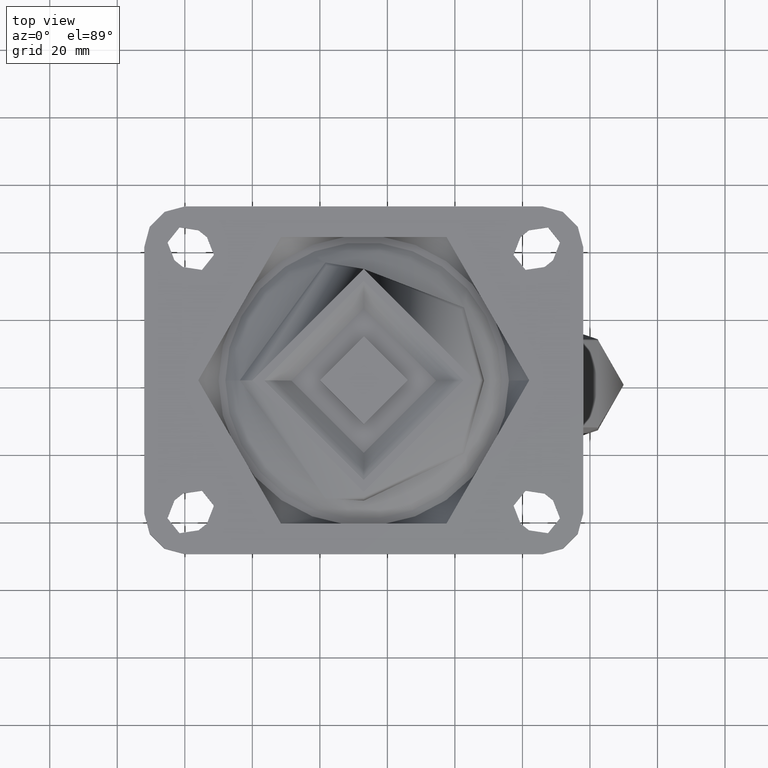
[diagram: clean part render]
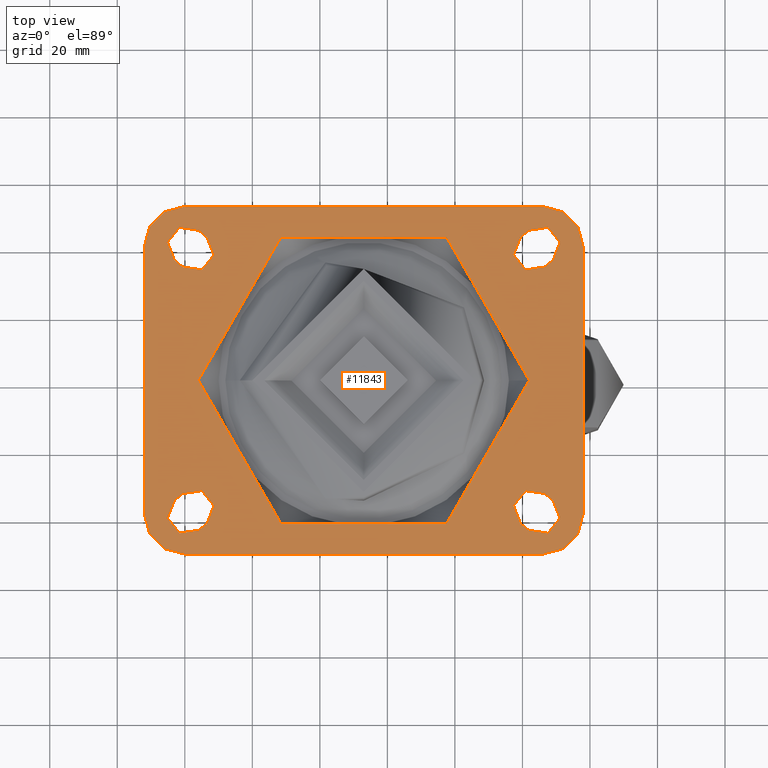
[diagram: same view with one face highlighted and labeled with its STEP entity id]
A machine part, top view. The second image highlights one B-rep face of the part: STEP entity #11843.
In plain terms, the highlighted planar face has unit normal (-0, 0, -1).
Its self-contained STEP definition (entity closure, byte-faithful):
#446=FACE_BOUND('',#3954,.T.);
#447=FACE_BOUND('',#3955,.T.);
#448=FACE_BOUND('',#3956,.T.);
#449=FACE_BOUND('',#3957,.T.);
#450=FACE_BOUND('',#3958,.T.);
#615=PLANE('',#12854);
#1500=LINE('',#17557,#2237);
#1502=LINE('',#17565,#2239);
#1503=LINE('',#17570,#2240);
#1504=LINE('',#17574,#2241);
#1505=LINE('',#17576,#2242);
#1506=LINE('',#17577,#2243);
#1507=LINE('',#17578,#2244);
#1508=LINE('',#17579,#2245);
#1509=LINE('',#17580,#2246);
#1510=LINE('',#17581,#2247);
#1511=LINE('',#17582,#2248);
#1512=LINE('',#17583,#2249);
#2237=VECTOR('',#14161,1.);
#2239=VECTOR('',#14171,1.);
#2240=VECTOR('',#14176,1.);
#2241=VECTOR('',#14179,1.);
#2242=VECTOR('',#14182,1.);
#2243=VECTOR('',#14183,1.);
#2244=VECTOR('',#14184,1.);
#2245=VECTOR('',#14185,1.);
#2246=VECTOR('',#14186,1.);
#2247=VECTOR('',#14187,1.);
#2248=VECTOR('',#14188,1.);
#2249=VECTOR('',#14189,1.);
#3203=FACE_OUTER_BOUND('',#3953,.T.);
#3953=EDGE_LOOP('',(#8506,#8507,#8508,#8509,#8510,#8511,#8512,#8513));
#3954=EDGE_LOOP('',(#8514));
#3955=EDGE_LOOP('',(#8515,#8516,#8517,#8518));
#3956=EDGE_LOOP('',(#8519,#8520,#8521,#8522));
#3957=EDGE_LOOP('',(#8523,#8524,#8525,#8526));
#3958=EDGE_LOOP('',(#8527,#8528,#8529,#8530));
#4802=CIRCLE('',#12777,5.70000000000001);
#4803=CIRCLE('',#12779,5.70000000000001);
#4805=CIRCLE('',#12782,5.70000000000001);
#4808=CIRCLE('',#12786,5.7);
#4810=CIRCLE('',#12789,5.7);
#4811=CIRCLE('',#12791,5.70000000000001);
#4814=CIRCLE('',#12795,5.70000000000001);
#4815=CIRCLE('',#12797,5.70000000000001);
#4832=CIRCLE('',#12820,49.0136280475669);
#4852=CIRCLE('',#12855,12.);
#4853=CIRCLE('',#12856,12.);
#4854=CIRCLE('',#12857,12.);
#4855=CIRCLE('',#12858,12.);
#5282=VERTEX_POINT('',#17320);
#5283=VERTEX_POINT('',#17322);
#5284=VERTEX_POINT('',#17326);
#5285=VERTEX_POINT('',#17327);
#5288=VERTEX_POINT('',#17335);
#5289=VERTEX_POINT('',#17336);
#5294=VERTEX_POINT('',#17347);
#5295=VERTEX_POINT('',#17349);
#5298=VERTEX_POINT('',#17356);
#5299=VERTEX_POINT('',#17358);
#5300=VERTEX_POINT('',#17362);
#5301=VERTEX_POINT('',#17363);
#5306=VERTEX_POINT('',#17374);
#5307=VERTEX_POINT('',#17376);
#5308=VERTEX_POINT('',#17380);
#5309=VERTEX_POINT('',#17381);
#5322=VERTEX_POINT('',#17447);
#5339=VERTEX_POINT('',#17554);
#5340=VERTEX_POINT('',#17556);
#5341=VERTEX_POINT('',#17563);
#5342=VERTEX_POINT('',#17564);
#5343=VERTEX_POINT('',#17567);
#5344=VERTEX_POINT('',#17569);
#5345=VERTEX_POINT('',#17571);
#5346=VERTEX_POINT('',#17573);
#6499=EDGE_CURVE('',#5283,#5282,#4802,.T.);
#6501=EDGE_CURVE('',#5284,#5285,#4803,.T.);
#6505=EDGE_CURVE('',#5288,#5289,#4805,.T.);
#6511=EDGE_CURVE('',#5295,#5294,#4808,.T.);
#6515=EDGE_CURVE('',#5298,#5299,#4810,.T.);
#6517=EDGE_CURVE('',#5300,#5301,#4811,.T.);
#6523=EDGE_CURVE('',#5306,#5307,#4814,.T.);
#6525=EDGE_CURVE('',#5308,#5309,#4815,.T.);
#6546=EDGE_CURVE('',#5322,#5322,#4832,.T.);
#6571=EDGE_CURVE('',#5340,#5339,#1500,.T.);
#6573=EDGE_CURVE('',#5341,#5342,#1502,.T.);
#6574=EDGE_CURVE('',#5341,#5340,#4852,.T.);
#6575=EDGE_CURVE('',#5339,#5343,#4853,.T.);
#6576=EDGE_CURVE('',#5344,#5343,#1503,.T.);
#6577=EDGE_CURVE('',#5345,#5344,#4854,.T.);
#6578=EDGE_CURVE('',#5346,#5345,#1504,.T.);
#6579=EDGE_CURVE('',#5342,#5346,#4855,.T.);
#6580=EDGE_CURVE('',#5309,#5306,#1505,.T.);
#6581=EDGE_CURVE('',#5307,#5308,#1506,.T.);
#6582=EDGE_CURVE('',#5299,#5300,#1507,.T.);
#6583=EDGE_CURVE('',#5301,#5298,#1508,.T.);
#6584=EDGE_CURVE('',#5282,#5284,#1509,.T.);
#6585=EDGE_CURVE('',#5285,#5283,#1510,.T.);
#6586=EDGE_CURVE('',#5289,#5295,#1511,.T.);
#6587=EDGE_CURVE('',#5294,#5288,#1512,.T.);
#8506=ORIENTED_EDGE('',*,*,#6573,.F.);
#8507=ORIENTED_EDGE('',*,*,#6574,.T.);
#8508=ORIENTED_EDGE('',*,*,#6571,.T.);
#8509=ORIENTED_EDGE('',*,*,#6575,.T.);
#8510=ORIENTED_EDGE('',*,*,#6576,.F.);
#8511=ORIENTED_EDGE('',*,*,#6577,.F.);
#8512=ORIENTED_EDGE('',*,*,#6578,.F.);
#8513=ORIENTED_EDGE('',*,*,#6579,.F.);
#8514=ORIENTED_EDGE('',*,*,#6546,.F.);
#8515=ORIENTED_EDGE('',*,*,#6523,.F.);
#8516=ORIENTED_EDGE('',*,*,#6580,.F.);
#8517=ORIENTED_EDGE('',*,*,#6525,.F.);
#8518=ORIENTED_EDGE('',*,*,#6581,.F.);
#8519=ORIENTED_EDGE('',*,*,#6517,.F.);
#8520=ORIENTED_EDGE('',*,*,#6582,.F.);
#8521=ORIENTED_EDGE('',*,*,#6515,.F.);
#8522=ORIENTED_EDGE('',*,*,#6583,.F.);
#8523=ORIENTED_EDGE('',*,*,#6499,.T.);
#8524=ORIENTED_EDGE('',*,*,#6584,.T.);
#8525=ORIENTED_EDGE('',*,*,#6501,.T.);
#8526=ORIENTED_EDGE('',*,*,#6585,.T.);
#8527=ORIENTED_EDGE('',*,*,#6505,.T.);
#8528=ORIENTED_EDGE('',*,*,#6586,.T.);
#8529=ORIENTED_EDGE('',*,*,#6511,.T.);
#8530=ORIENTED_EDGE('',*,*,#6587,.T.);
#11843=ADVANCED_FACE('',(#3203,#446,#447,#448,#449,#450),#615,.F.);
#12777=AXIS2_PLACEMENT_3D('',#17323,#13991,#13992);
#12779=AXIS2_PLACEMENT_3D('',#17328,#13996,#13997);
#12782=AXIS2_PLACEMENT_3D('',#17337,#14004,#14005);
#12786=AXIS2_PLACEMENT_3D('',#17350,#14015,#14016);
#12789=AXIS2_PLACEMENT_3D('',#17359,#14023,#14024);
#12791=AXIS2_PLACEMENT_3D('',#17364,#14028,#14029);
#12795=AXIS2_PLACEMENT_3D('',#17377,#14039,#14040);
#12797=AXIS2_PLACEMENT_3D('',#17382,#14044,#14045);
#12820=AXIS2_PLACEMENT_3D('',#17449,#14094,#14095);
#12854=AXIS2_PLACEMENT_3D('',#17562,#14169,#14170);
#12855=AXIS2_PLACEMENT_3D('',#17566,#14172,#14173);
#12856=AXIS2_PLACEMENT_3D('',#17568,#14174,#14175);
#12857=AXIS2_PLACEMENT_3D('',#17572,#14177,#14178);
#12858=AXIS2_PLACEMENT_3D('',#17575,#14180,#14181);
#13991=DIRECTION('center_axis',(0.,0.,-1.));
#13992=DIRECTION('ref_axis',(1.,0.,0.));
#13996=DIRECTION('center_axis',(0.,0.,-1.));
#13997=DIRECTION('ref_axis',(1.,0.,0.));
#14004=DIRECTION('center_axis',(0.,0.,-1.));
#14005=DIRECTION('ref_axis',(1.,0.,0.));
#14015=DIRECTION('center_axis',(0.,0.,-1.));
#14016=DIRECTION('ref_axis',(1.,0.,0.));
#14023=DIRECTION('center_axis',(0.,0.,1.));
#14024=DIRECTION('ref_axis',(1.,0.,0.));
#14028=DIRECTION('center_axis',(0.,0.,1.));
#14029=DIRECTION('ref_axis',(1.,0.,0.));
#14039=DIRECTION('center_axis',(0.,0.,1.));
#14040=DIRECTION('ref_axis',(1.,0.,0.));
#14044=DIRECTION('center_axis',(0.,0.,1.));
#14045=DIRECTION('ref_axis',(1.,0.,0.));
#14094=DIRECTION('center_axis',(0.,0.,1.));
#14095=DIRECTION('ref_axis',(-1.,0.,0.));
#14161=DIRECTION('',(1.,-2.09476042382105E-15,0.));
#14169=DIRECTION('center_axis',(0.,0.,-1.));
#14170=DIRECTION('ref_axis',(0.,-1.,0.));
#14171=DIRECTION('',(0.,1.,0.));
#14172=DIRECTION('center_axis',(0.,0.,1.));
#14173=DIRECTION('ref_axis',(1.,0.,0.));
#14174=DIRECTION('center_axis',(0.,0.,1.));
#14175=DIRECTION('ref_axis',(1.,0.,0.));
#14176=DIRECTION('',(0.,-1.,0.));
#14177=DIRECTION('center_axis',(0.,0.,-1.));
#14178=DIRECTION('ref_axis',(1.,0.,0.));
#14179=DIRECTION('',(1.,2.09476042382105E-15,0.));
#14180=DIRECTION('center_axis',(0.,0.,-1.));
#14181=DIRECTION('ref_axis',(1.,0.,0.));
#14182=DIRECTION('',(-0.78086880944303,-0.624695047554425,0.));
#14183=DIRECTION('',(0.78086880944303,0.624695047554425,0.));
#14184=DIRECTION('',(0.78086880944303,-0.624695047554424,0.));
#14185=DIRECTION('',(-0.780868809443027,0.624695047554429,0.));
#14186=DIRECTION('',(0.78086880944303,-0.624695047554425,0.));
#14187=DIRECTION('',(-0.78086880944303,0.624695047554425,0.));
#14188=DIRECTION('',(-0.780868809443027,-0.624695047554429,0.));
#14189=DIRECTION('',(0.78086880944303,0.624695047554424,0.));
#17320=CARTESIAN_POINT('',(-27.5359321693506,161.729141520179,0.));
#17322=CARTESIAN_POINT('',(-34.6574557114712,152.827237092529,0.));
#17323=CARTESIAN_POINT('Origin',(-31.0966939404109,157.278189306354,0.));
#17326=CARTESIAN_POINT('',(-25.0359321693506,159.729141520179,0.));
#17327=CARTESIAN_POINT('',(-32.1574557114712,150.827237092529,0.));
#17328=CARTESIAN_POINT('Origin',(-28.5966939404109,155.278189306354,0.));
#17335=CARTESIAN_POINT('',(-134.657455711471,161.729141520179,0.));
#17336=CARTESIAN_POINT('',(-127.535932169351,152.827237092529,0.));
#17337=CARTESIAN_POINT('Origin',(-131.096693940411,157.278189306354,0.));
#17347=CARTESIAN_POINT('',(-137.157455711471,159.729141520179,0.));
#17349=CARTESIAN_POINT('',(-130.035932169351,150.827237092529,0.));
#17350=CARTESIAN_POINT('Origin',(-133.596693940411,155.278189306354,0.));
#17356=CARTESIAN_POINT('',(-130.035932169351,239.729141520179,0.));
#17358=CARTESIAN_POINT('',(-137.157455711471,230.827237092529,0.));
#17359=CARTESIAN_POINT('Origin',(-133.596693940411,235.278189306354,0.));
#17362=CARTESIAN_POINT('',(-134.657455711471,228.827237092529,0.));
#17363=CARTESIAN_POINT('',(-127.535932169351,237.729141520179,0.));
#17364=CARTESIAN_POINT('Origin',(-131.096693940411,233.278189306354,0.));
#17374=CARTESIAN_POINT('',(-34.6574557114712,237.729141520179,0.));
#17376=CARTESIAN_POINT('',(-27.5359321693506,228.827237092528,0.));
#17377=CARTESIAN_POINT('Origin',(-31.0966939404109,233.278189306354,0.));
#17380=CARTESIAN_POINT('',(-25.0359321693506,230.827237092528,0.));
#17381=CARTESIAN_POINT('',(-32.1574557114712,239.729141520179,0.));
#17382=CARTESIAN_POINT('Origin',(-28.5966939404109,235.278189306354,0.));
#17447=CARTESIAN_POINT('',(-130.110321987978,195.278189306354,0.));
#17449=CARTESIAN_POINT('Origin',(-81.096693940411,195.278189306354,0.));
#17554=CARTESIAN_POINT('',(-28.0966939404109,143.778189306354,0.));
#17556=CARTESIAN_POINT('',(-134.096693940411,143.778189306354,0.));
#17557=CARTESIAN_POINT('',(-81.096693940411,143.778189306354,0.));
#17562=CARTESIAN_POINT('Origin',(-130.110321987978,195.278189306354,-1.52655665885899E-16));
#17563=CARTESIAN_POINT('',(-146.096693940411,155.778189306354,0.));
#17564=CARTESIAN_POINT('',(-146.096693940411,234.778189306354,0.));
#17565=CARTESIAN_POINT('',(-146.096693940411,195.278189306354,0.));
#17566=CARTESIAN_POINT('Origin',(-134.096693940411,155.778189306354,0.));
#17567=CARTESIAN_POINT('',(-16.0966939404109,155.778189306354,0.));
#17568=CARTESIAN_POINT('Origin',(-28.0966939404109,155.778189306354,0.));
#17569=CARTESIAN_POINT('',(-16.0966939404109,234.778189306354,0.));
#17570=CARTESIAN_POINT('',(-16.0966939404109,234.778189306354,0.));
#17571=CARTESIAN_POINT('',(-28.0966939404109,246.778189306354,0.));
#17572=CARTESIAN_POINT('Origin',(-28.0966939404109,234.778189306354,0.));
#17573=CARTESIAN_POINT('',(-134.096693940411,246.778189306354,0.));
#17574=CARTESIAN_POINT('',(-81.096693940411,246.778189306354,0.));
#17575=CARTESIAN_POINT('Origin',(-134.096693940411,234.778189306354,0.));
#17576=CARTESIAN_POINT('',(-32.1574557114711,239.729141520179,0.));
#17577=CARTESIAN_POINT('',(-27.5359321693506,228.827237092528,0.));
#17578=CARTESIAN_POINT('',(-137.157455711471,230.827237092528,0.));
#17579=CARTESIAN_POINT('',(-127.535932169351,237.729141520179,0.));
#17580=CARTESIAN_POINT('',(-27.5359321693506,161.729141520179,0.));
#17581=CARTESIAN_POINT('',(-32.1574557114711,150.827237092529,0.));
#17582=CARTESIAN_POINT('',(-127.535932169351,152.827237092529,0.));
#17583=CARTESIAN_POINT('',(-137.157455711471,159.729141520179,0.));